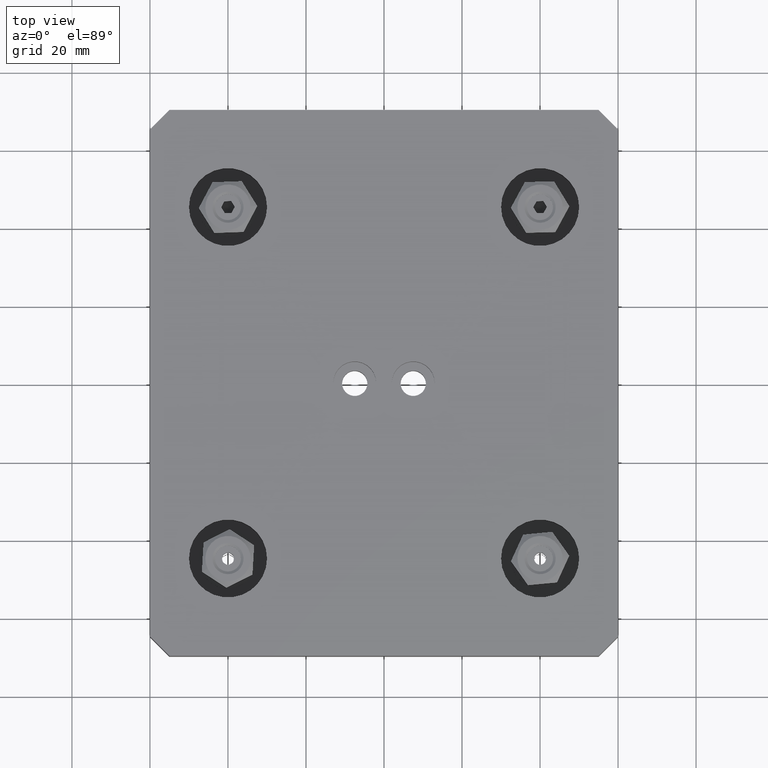
[diagram: clean part render]
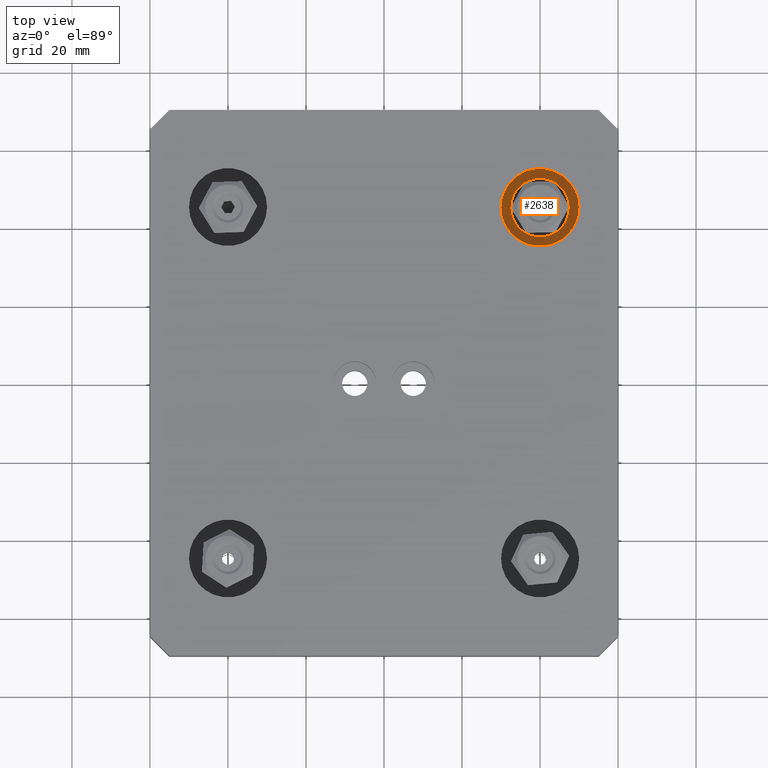
[diagram: same view with one face highlighted and labeled with its STEP entity id]
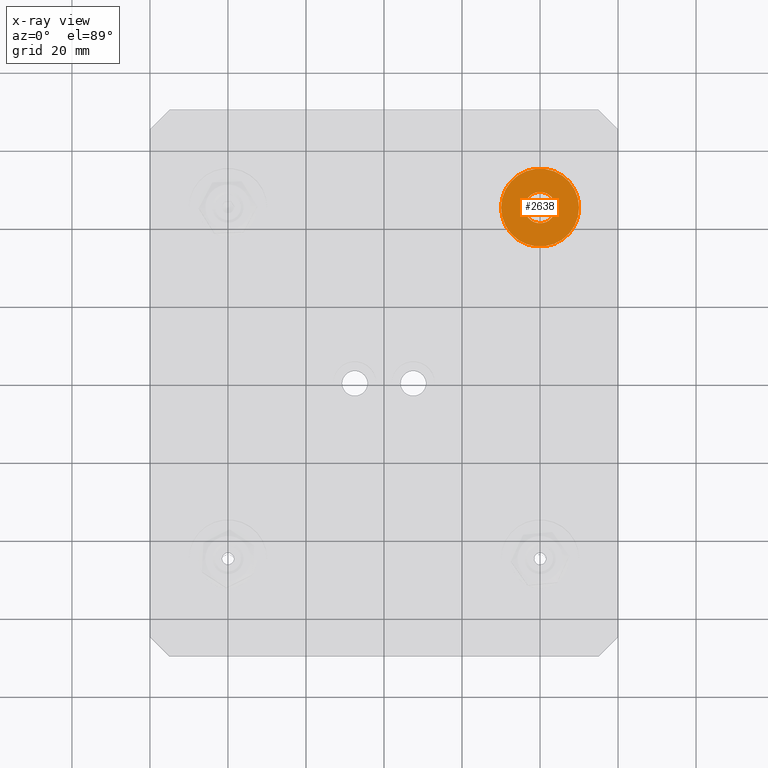
[diagram: x-ray of the same camera — body ghosted, the highlighted face saturated]
A machine part, top view. The second image highlights one B-rep face of the part: STEP entity #2638.
The next image is the same camera in x-ray: the body ghosted, the highlighted face saturated — about 0% of this face is hidden behind the body in this view.
In plain terms, the highlighted planar face has unit normal (0, 0, 1).
Its self-contained STEP definition (entity closure, byte-faithful):
#191=FACE_BOUND('',#562,.T.);
#237=CIRCLE('',#3020,10.);
#238=CIRCLE('',#3021,4.);
#381=FACE_OUTER_BOUND('',#561,.T.);
#561=EDGE_LOOP('',(#1850));
#562=EDGE_LOOP('',(#1851));
#1208=VERTEX_POINT('',#4311);
#1209=VERTEX_POINT('',#4313);
#1455=EDGE_CURVE('',#1208,#1208,#237,.T.);
#1456=EDGE_CURVE('',#1209,#1209,#238,.T.);
#1850=ORIENTED_EDGE('',*,*,#1455,.T.);
#1851=ORIENTED_EDGE('',*,*,#1456,.F.);
#2532=PLANE('',#3019);
#2638=ADVANCED_FACE('',(#381,#191),#2532,.T.);
#3019=AXIS2_PLACEMENT_3D('',#4310,#3419,#3420);
#3020=AXIS2_PLACEMENT_3D('',#4312,#3421,#3422);
#3021=AXIS2_PLACEMENT_3D('',#4314,#3423,#3424);
#3419=DIRECTION('center_axis',(0.,0.,1.));
#3420=DIRECTION('ref_axis',(1.,0.,0.));
#3421=DIRECTION('center_axis',(0.,0.,1.));
#3422=DIRECTION('ref_axis',(1.,0.,0.));
#3423=DIRECTION('center_axis',(0.,0.,1.));
#3424=DIRECTION('ref_axis',(1.,0.,0.));
#4310=CARTESIAN_POINT('Origin',(40.,45.05,7.));
#4311=CARTESIAN_POINT('',(30.,45.05,7.));
#4312=CARTESIAN_POINT('Origin',(40.,45.05,7.));
#4313=CARTESIAN_POINT('',(36.,45.05,6.99999999999999));
#4314=CARTESIAN_POINT('Origin',(40.,45.05,6.99999999999999));